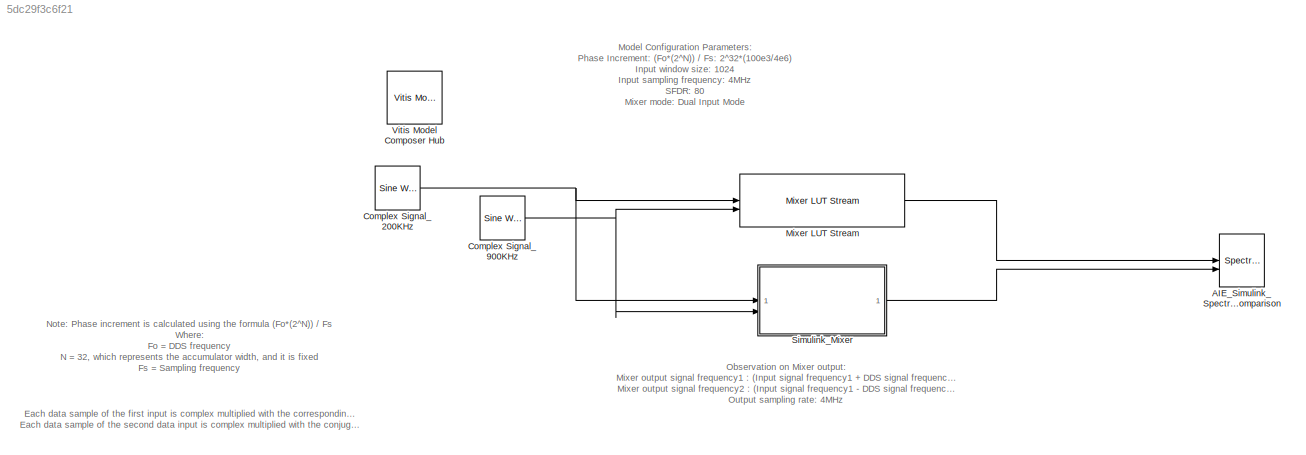
MODEL slx_5dc29f3c6f21
KIND model
CONFIG AbsTol = auto
CONFIG EnableMultiTasking = off
CONFIG FixedStep = auto
CONFIG MaxStep = auto
CONFIG MinStep = auto
CONFIG RelTol = 1e-3
CONFIG SampleTimeConstraint = Unconstrained
CONFIG SolverName = VariableStepAuto
CONFIG StartTime = 0.0
CONFIG StopTime = 0.01
BLOCK [SpectrumAnalyzer] AIE_Simulink_Spectrum_Comparison
  AllowFFTLengthLessThanSamplesPerUpdate = on
  AveragingMethod = Exponential
  ChannelNames = [""]
  DefaultConfigurationName = spbscopes.SpectrumAnalyzerBlockCfg
  NumInputPorts = 2
  ScopeSpecificationString = spbscopes.SpectrumAnalyzerBlockCfg('CurrentConfiguration', extmgr.ConfigurationSet(extmgr.Configuration('Core','General UI',true,'FigureColor',[0.12941     0.12941     0.12941]),extmgr.Configuration('Visuals','Spectrum',true,'Title','','YLabel','','MinYLim','-57.3969','MaxYLim','39.6879','Legend',true,'AxesProperties',struct('XGrid',{'on','on'},'YGrid',{'on','on'},'ZGrid',{'on','on'},'Color',{[0  ...<+2427ch>
  ShowLegend = on
  WasSavedAsWebScope = on
BLOCK [Reference] Complex Signal_200KHz  REF=dspsrcs4/Sine Wave
  SourceBlock = dspsrcs4/Sine Wave
  SourceType = Sine Wave
BLOCK [Reference] Complex Signal_900KHz  REF=dspsrcs4/Sine Wave
  SourceBlock = dspsrcs4/Sine Wave
  SourceType = Sine Wave
BLOCK [Reference] Mixer LUT Stream  REF=aieDSP/Mixer LUT Stream
  SourceBlock = aieDSP/Mixer LUT Stream
  SourceType = Mixer LUT Stream
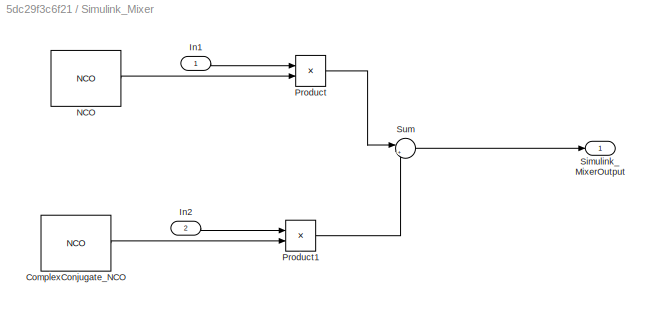
BLOCK [SubSystem] Simulink_Mixer
BLOCK [Reference] Simulink_Mixer/ComplexConjugate_NCO  REF=dspsigops/NCO
  SourceBlock = dspsigops/NCO
  SourceType = NCO
BLOCK [Inport] Simulink_Mixer/In1
BLOCK [Inport] Simulink_Mixer/In2
  Port = 2
BLOCK [Reference] Simulink_Mixer/NCO  REF=dspsigops/NCO
  SourceBlock = dspsigops/NCO
  SourceType = NCO
BLOCK [Product] Simulink_Mixer/Product
BLOCK [Product] Simulink_Mixer/Product1
BLOCK [Outport] Simulink_Mixer/Simulink_MixerOutput
BLOCK [Sum] Simulink_Mixer/Sum
  Inputs = |++
BLOCK [Reference] Vitis Model Composer Hub  REF=vmcUtilities/Vitis Model Composer Hub
  SourceBlock = vmcUtilities/Vitis Model Composer Hub
  SourceType = VMC Hub
  Tag = genX
  UserDataPersistent = on
ANNOTATION (root): Each data sample of the first input is complex multiplied with the corresponding DDS sample to create a modulated signal. Each data sample of the second data input is complex multiplied with the conjugate (which is equivalent to a signal rotating in the opposite direction) of the DDS sample to create a second modulated signal. These two modulated signals are added together and written to the outpu...<+9ch>
ANNOTATION (root): Model Configuration Parameters: Phase Increment: (Fo*(2^N)) / Fs: 2^32*(100e3/4e6) Input window size: 1024 Input sampling frequency: 4MHz SFDR: 80 Mixer mode: Dual Input Mode SSR: 1
ANNOTATION (root): Note : Phase increment is calculated using the formula (Fo*(2^N)) / Fs Where: Fo = DDS frequency N = 32, which represents the accumulator width, and it is fixed Fs = Sampling frequency
ANNOTATION (root): Observation on Mixer output: Mixer output signal frequency1 : (Input signal frequency1 + DDS signal frequency) = (200KHz + 100KHz) = 300KHz Mixer output signal frequency2 : (Input signal frequency1 - DDS signal frequency) = (900KHz - 100KHz) = 800KHz Output sampling rate: 4MHz
NET Complex Signal_200KHz:1 -> Mixer LUT Stream:1, Simulink_Mixer:1
NET Complex Signal_900KHz:1 -> Mixer LUT Stream:2, Simulink_Mixer:2
LINE Mixer LUT Stream:1 -> AIE_Simulink_Spectrum_Comparison:1
LINE Simulink_Mixer/ComplexConjugate_NCO:1 -> Simulink_Mixer/Product1:2
LINE Simulink_Mixer/In1:1 -> Simulink_Mixer/Product:1
LINE Simulink_Mixer/In2:1 -> Simulink_Mixer/Product1:1
LINE Simulink_Mixer/NCO:1 -> Simulink_Mixer/Product:2
LINE Simulink_Mixer/Product1:1 -> Simulink_Mixer/Sum:2
LINE Simulink_Mixer/Product:1 -> Simulink_Mixer/Sum:1
LINE Simulink_Mixer/Sum:1 -> Simulink_Mixer/Simulink_MixerOutput:1
LINE Simulink_Mixer:1 -> AIE_Simulink_Spectrum_Comparison:2
note: NET lines group one-source signal fan-out (src -> all destinations, sorted); 1:1 wires keep LINE
